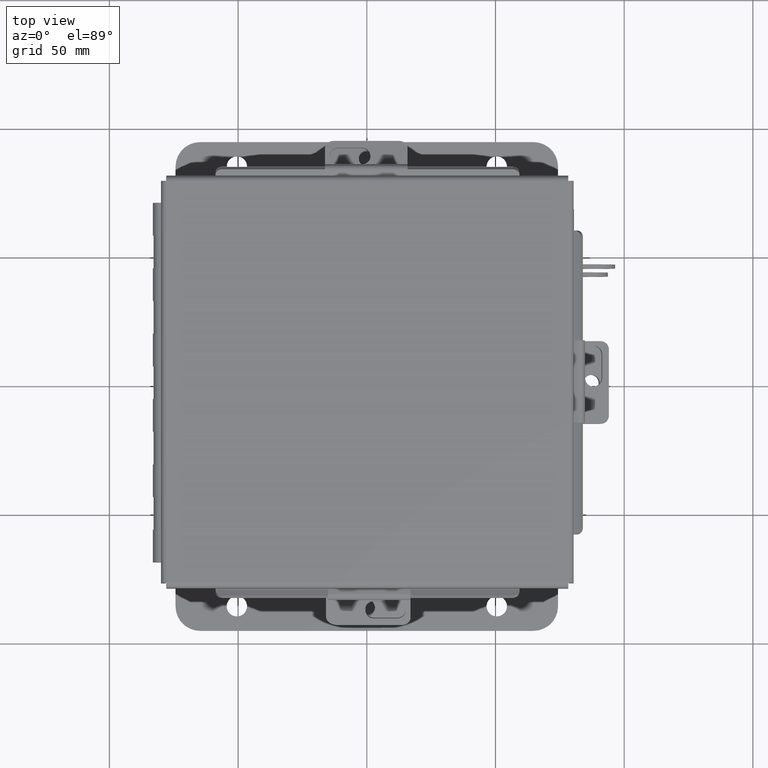
[diagram: clean part render]
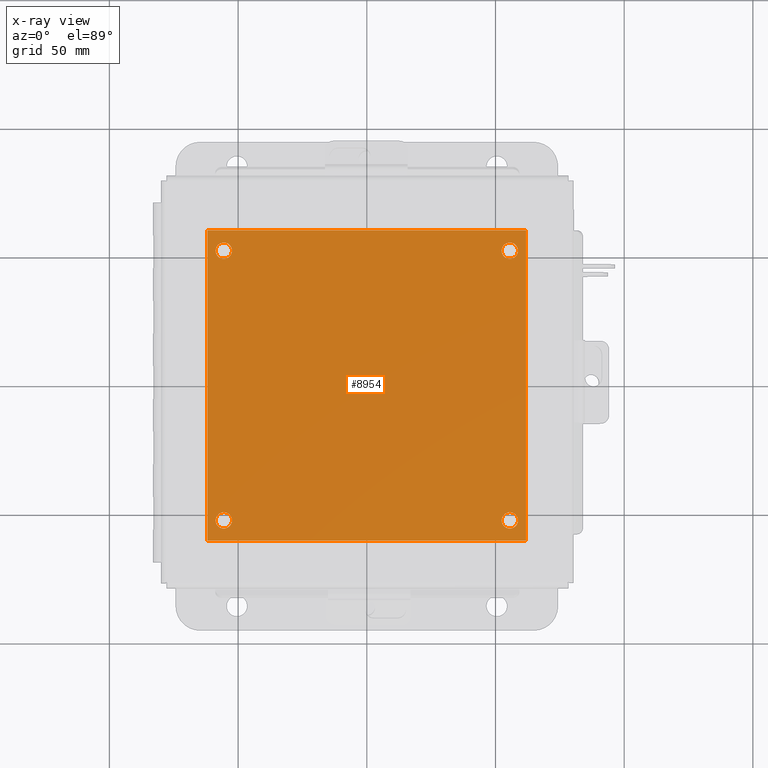
[diagram: x-ray — body ghosted, one internal face saturated and labeled with its STEP entity id]
A machine part, top view, then the same camera in x-ray: the body is ghosted and one INTERNAL B-rep face — a face not visible from any outside direction — is saturated and labeled: STEP entity #8954.
In plain terms, the highlighted planar face has unit normal (0, 0, -1).
Its self-contained STEP definition (entity closure, byte-faithful):
#21 = CARTESIAN_POINT ( 'NONE',  ( 0.1250000000000019200, 0.3120000000000015500, -0.1046000000000000000 ) ) ;
#135 = EDGE_CURVE ( 'NONE', #8675, #9206, #6668, .T. ) ;
#585 = CARTESIAN_POINT ( 'NONE',  ( 0.2500000000000020000, 0.3120000000000015500, -0.1046000000000000000 ) ) ;
#598 = PLANE ( 'NONE',  #9663 ) ;
#730 = AXIS2_PLACEMENT_3D ( 'NONE', #10716, #4111, #11817 ) ;
#743 = LINE ( 'NONE', #8212, #3321 ) ;
#801 = DIRECTION ( 'NONE',  ( -1.000000000000000000, 0.0000000000000000000, 0.0000000000000000000 ) ) ;
#808 = ORIENTED_EDGE ( 'NONE', *, *, #3620, .T. ) ;
#834 = EDGE_CURVE ( 'NONE', #9206, #5030, #10078, .T. ) ;
#1107 = VERTEX_POINT ( 'NONE', #8161 ) ;
#1120 = CARTESIAN_POINT ( 'NONE',  ( 4.875000000000000000, 4.749999999999999100, -0.1046000000000000000 ) ) ;
#1146 = ORIENTED_EDGE ( 'NONE', *, *, #9599, .T. ) ;
#1238 = CARTESIAN_POINT ( 'NONE',  ( 0.0000000000000000000, 4.749999999999999100, -0.1046000000000000000 ) ) ;
#1274 = CARTESIAN_POINT ( 'NONE',  ( 0.1250000000000001100, 4.437999999999998800, -0.1046000000000000000 ) ) ;
#1305 = VECTOR ( 'NONE', #3307, 39.37007874015748100 ) ;
#1443 = ORIENTED_EDGE ( 'NONE', *, *, #9744, .T. ) ;
#1474 = CARTESIAN_POINT ( 'NONE',  ( 4.875000000000000000, 0.0000000000000000000, -0.1046000000000000000 ) ) ;
#1599 = VERTEX_POINT ( 'NONE', #1274 ) ;
#1629 = ORIENTED_EDGE ( 'NONE', *, *, #2448, .T. ) ;
#1679 = CARTESIAN_POINT ( 'NONE',  ( 0.3750000000000020000, 0.3120000000000015500, -0.1046000000000000000 ) ) ;
#1680 = DIRECTION ( 'NONE',  ( -1.000000000000000000, 0.0000000000000000000, 0.0000000000000000000 ) ) ;
#1857 = CARTESIAN_POINT ( 'NONE',  ( 4.625000000000000900, 0.3120000000000009400, -0.1046000000000000000 ) ) ;
#2026 = FACE_OUTER_BOUND ( 'NONE', #8181, .T. ) ;
#2376 = FACE_BOUND ( 'NONE', #12995, .T. ) ;
#2448 = EDGE_CURVE ( 'NONE', #4273, #1107, #10226, .T. ) ;
#2565 = DIRECTION ( 'NONE',  ( 0.0000000000000000000, 1.000000000000000000, 0.0000000000000000000 ) ) ;
#2620 = CIRCLE ( 'NONE', #4301, 0.1250000000000000000 ) ;
#2675 = AXIS2_PLACEMENT_3D ( 'NONE', #13951, #7390, #801 ) ;
#2707 = DIRECTION ( 'NONE',  ( -0.0000000000000000000, -0.0000000000000000000, 1.000000000000000000 ) ) ;
#2753 = DIRECTION ( 'NONE',  ( -0.0000000000000000000, -0.0000000000000000000, 1.000000000000000000 ) ) ;
#2958 = DIRECTION ( 'NONE',  ( -1.000000000000000000, 0.0000000000000000000, 0.0000000000000000000 ) ) ;
#3061 = AXIS2_PLACEMENT_3D ( 'NONE', #5185, #12871, #6302 ) ;
#3307 = DIRECTION ( 'NONE',  ( -1.000000000000000000, -0.0000000000000000000, -0.0000000000000000000 ) ) ;
#3321 = VECTOR ( 'NONE', #7116, 39.37007874015748100 ) ;
#3620 = EDGE_CURVE ( 'NONE', #1107, #4273, #5582, .T. ) ;
#4075 = VERTEX_POINT ( 'NONE', #1679 ) ;
#4111 = DIRECTION ( 'NONE',  ( -0.0000000000000000000, -0.0000000000000000000, 1.000000000000000000 ) ) ;
#4260 = ORIENTED_EDGE ( 'NONE', *, *, #834, .F. ) ;
#4273 = VERTEX_POINT ( 'NONE', #9671 ) ;
#4301 = AXIS2_PLACEMENT_3D ( 'NONE', #9301, #2707, #10403 ) ;
#4398 = CIRCLE ( 'NONE', #730, 0.1250000000000000000 ) ;
#4620 = EDGE_CURVE ( 'NONE', #4796, #8675, #743, .T. ) ;
#4649 = VECTOR ( 'NONE', #13627, 39.37007874015748100 ) ;
#4796 = VERTEX_POINT ( 'NONE', #13959 ) ;
#4939 = FACE_BOUND ( 'NONE', #6837, .T. ) ;
#5000 = DIRECTION ( 'NONE',  ( 0.0000000000000000000, 0.0000000000000000000, -1.000000000000000000 ) ) ;
#5030 = VERTEX_POINT ( 'NONE', #1238 ) ;
#5185 = CARTESIAN_POINT ( 'NONE',  ( 4.625000000000000000, 4.437999999999998800, -0.1046000000000000000 ) ) ;
#5247 = CARTESIAN_POINT ( 'NONE',  ( 0.3750000000000001100, 4.437999999999998800, -0.1046000000000000000 ) ) ;
#5509 = ORIENTED_EDGE ( 'NONE', *, *, #4620, .F. ) ;
#5553 = EDGE_CURVE ( 'NONE', #5030, #4796, #10865, .T. ) ;
#5558 = CARTESIAN_POINT ( 'NONE',  ( 4.875000000000000000, 0.0000000000000000000, -0.1046000000000000000 ) ) ;
#5582 = CIRCLE ( 'NONE', #3061, 0.1249999999999999000 ) ;
#5954 = CARTESIAN_POINT ( 'NONE',  ( 0.0000000000000000000, 0.0000000000000000000, -0.1046000000000000000 ) ) ;
#6104 = DIRECTION ( 'NONE',  ( -0.0000000000000000000, -0.0000000000000000000, 1.000000000000000000 ) ) ;
#6157 = AXIS2_PLACEMENT_3D ( 'NONE', #585, #8272, #1680 ) ;
#6300 = VERTEX_POINT ( 'NONE', #5247 ) ;
#6302 = DIRECTION ( 'NONE',  ( -1.000000000000000000, 0.0000000000000000000, 0.0000000000000000000 ) ) ;
#6476 = CARTESIAN_POINT ( 'NONE',  ( 4.750000000000000900, 0.3120000000000009400, -0.1046000000000000000 ) ) ;
#6668 = LINE ( 'NONE', #1474, #9228 ) ;
#6837 = EDGE_LOOP ( 'NONE', ( #9531, #1443 ) ) ;
#7116 = DIRECTION ( 'NONE',  ( 1.000000000000000000, 0.0000000000000000000, 0.0000000000000000000 ) ) ;
#7204 = CIRCLE ( 'NONE', #7686, 0.1250000000000000600 ) ;
#7390 = DIRECTION ( 'NONE',  ( -0.0000000000000000000, -0.0000000000000000000, 1.000000000000000000 ) ) ;
#7445 = EDGE_LOOP ( 'NONE', ( #8527, #8133 ) ) ;
#7633 = AXIS2_PLACEMENT_3D ( 'NONE', #12670, #6104, #13778 ) ;
#7686 = AXIS2_PLACEMENT_3D ( 'NONE', #9351, #2753, #10451 ) ;
#7886 = FACE_BOUND ( 'NONE', #7445, .T. ) ;
#8133 = ORIENTED_EDGE ( 'NONE', *, *, #9580, .T. ) ;
#8161 = CARTESIAN_POINT ( 'NONE',  ( 4.500000000000000000, 4.437999999999998800, -0.1046000000000000000 ) ) ;
#8181 = EDGE_LOOP ( 'NONE', ( #10471, #4260, #12139, #5509 ) ) ;
#8212 = CARTESIAN_POINT ( 'NONE',  ( 0.0000000000000000000, 0.0000000000000000000, -0.1046000000000000000 ) ) ;
#8272 = DIRECTION ( 'NONE',  ( -0.0000000000000000000, -0.0000000000000000000, 1.000000000000000000 ) ) ;
#8420 = EDGE_CURVE ( 'NONE', #10362, #13735, #10812, .T. ) ;
#8527 = ORIENTED_EDGE ( 'NONE', *, *, #13655, .T. ) ;
#8675 = VERTEX_POINT ( 'NONE', #5558 ) ;
#8954 = ADVANCED_FACE ( 'NONE', ( #7886, #10797, #2376, #4939, #2026 ), #598, .T. ) ;
#9206 = VERTEX_POINT ( 'NONE', #1120 ) ;
#9228 = VECTOR ( 'NONE', #2565, 39.37007874015748100 ) ;
#9301 = CARTESIAN_POINT ( 'NONE',  ( 0.2500000000000001100, 4.437999999999998800, -0.1046000000000000000 ) ) ;
#9351 = CARTESIAN_POINT ( 'NONE',  ( 0.2500000000000020000, 0.3120000000000015500, -0.1046000000000000000 ) ) ;
#9531 = ORIENTED_EDGE ( 'NONE', *, *, #10745, .T. ) ;
#9559 = DIRECTION ( 'NONE',  ( -0.0000000000000000000, -0.0000000000000000000, 1.000000000000000000 ) ) ;
#9580 = EDGE_CURVE ( 'NONE', #12570, #4075, #11974, .T. ) ;
#9599 = EDGE_CURVE ( 'NONE', #13735, #10362, #11635, .T. ) ;
#9663 = AXIS2_PLACEMENT_3D ( 'NONE', #11588, #5000, #12683 ) ;
#9671 = CARTESIAN_POINT ( 'NONE',  ( 4.750000000000000000, 4.437999999999998800, -0.1046000000000000000 ) ) ;
#9744 = EDGE_CURVE ( 'NONE', #1599, #6300, #4398, .T. ) ;
#10078 = LINE ( 'NONE', #10994, #1305 ) ;
#10226 = CIRCLE ( 'NONE', #2675, 0.1249999999999999000 ) ;
#10362 = VERTEX_POINT ( 'NONE', #6476 ) ;
#10403 = DIRECTION ( 'NONE',  ( -1.000000000000000000, 0.0000000000000000000, 0.0000000000000000000 ) ) ;
#10451 = DIRECTION ( 'NONE',  ( -1.000000000000000000, 0.0000000000000000000, 0.0000000000000000000 ) ) ;
#10471 = ORIENTED_EDGE ( 'NONE', *, *, #5553, .F. ) ;
#10691 = CARTESIAN_POINT ( 'NONE',  ( 4.500000000000000900, 0.3120000000000009400, -0.1046000000000000000 ) ) ;
#10716 = CARTESIAN_POINT ( 'NONE',  ( 0.2500000000000001100, 4.437999999999998800, -0.1046000000000000000 ) ) ;
#10745 = EDGE_CURVE ( 'NONE', #6300, #1599, #2620, .T. ) ;
#10797 = FACE_BOUND ( 'NONE', #13460, .T. ) ;
#10812 = CIRCLE ( 'NONE', #11666, 0.1249999999999999000 ) ;
#10865 = LINE ( 'NONE', #5954, #4649 ) ;
#10994 = CARTESIAN_POINT ( 'NONE',  ( 0.0000000000000000000, 4.749999999999999100, -0.1046000000000000000 ) ) ;
#11397 = ORIENTED_EDGE ( 'NONE', *, *, #8420, .T. ) ;
#11588 = CARTESIAN_POINT ( 'NONE',  ( 0.0000000000000000000, 0.0000000000000000000, -0.1046000000000000000 ) ) ;
#11635 = CIRCLE ( 'NONE', #7633, 0.1249999999999999000 ) ;
#11666 = AXIS2_PLACEMENT_3D ( 'NONE', #1857, #9559, #2958 ) ;
#11817 = DIRECTION ( 'NONE',  ( -1.000000000000000000, 0.0000000000000000000, 0.0000000000000000000 ) ) ;
#11974 = CIRCLE ( 'NONE', #6157, 0.1250000000000000600 ) ;
#12139 = ORIENTED_EDGE ( 'NONE', *, *, #135, .F. ) ;
#12570 = VERTEX_POINT ( 'NONE', #21 ) ;
#12670 = CARTESIAN_POINT ( 'NONE',  ( 4.625000000000000900, 0.3120000000000009400, -0.1046000000000000000 ) ) ;
#12683 = DIRECTION ( 'NONE',  ( -1.000000000000000000, 0.0000000000000000000, -0.0000000000000000000 ) ) ;
#12871 = DIRECTION ( 'NONE',  ( -0.0000000000000000000, -0.0000000000000000000, 1.000000000000000000 ) ) ;
#12995 = EDGE_LOOP ( 'NONE', ( #1629, #808 ) ) ;
#13460 = EDGE_LOOP ( 'NONE', ( #11397, #1146 ) ) ;
#13627 = DIRECTION ( 'NONE',  ( -0.0000000000000000000, -1.000000000000000000, -0.0000000000000000000 ) ) ;
#13655 = EDGE_CURVE ( 'NONE', #4075, #12570, #7204, .T. ) ;
#13735 = VERTEX_POINT ( 'NONE', #10691 ) ;
#13778 = DIRECTION ( 'NONE',  ( -1.000000000000000000, 0.0000000000000000000, 0.0000000000000000000 ) ) ;
#13951 = CARTESIAN_POINT ( 'NONE',  ( 4.625000000000000000, 4.437999999999998800, -0.1046000000000000000 ) ) ;
#13959 = CARTESIAN_POINT ( 'NONE',  ( 0.0000000000000000000, 0.0000000000000000000, -0.1046000000000000000 ) ) ;